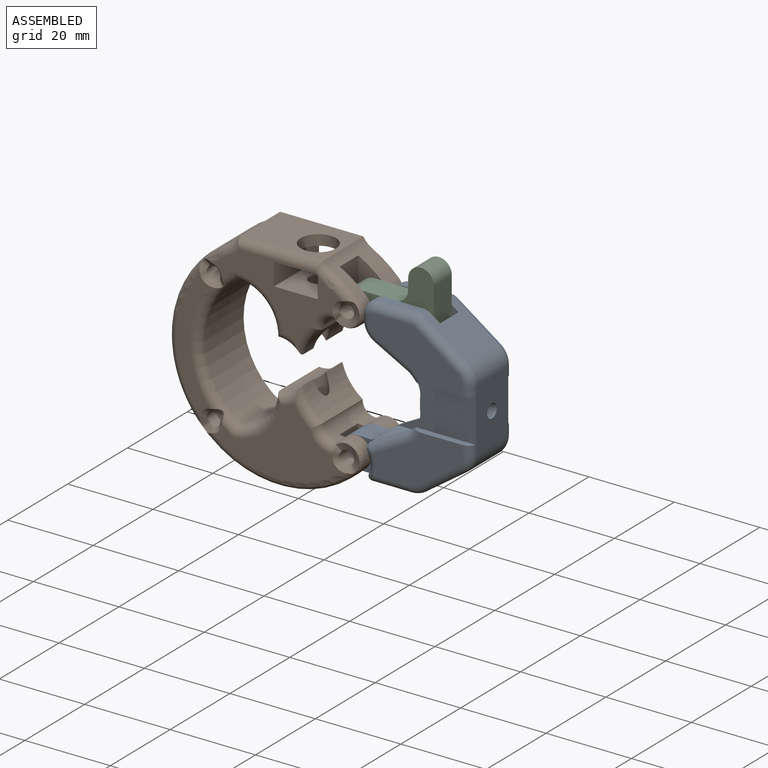
[diagram: assembled view]
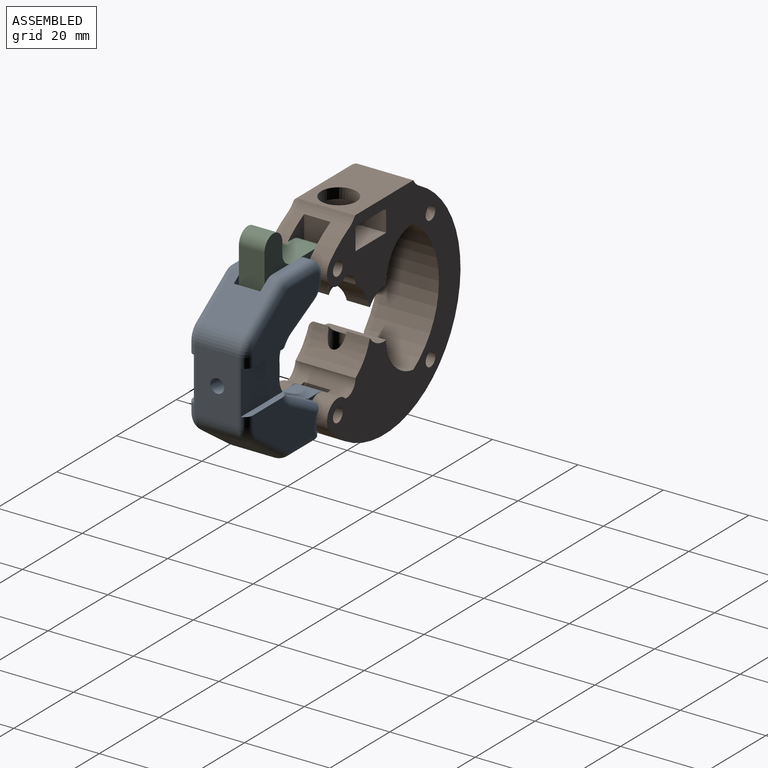
[diagram: assembled view, second angle]
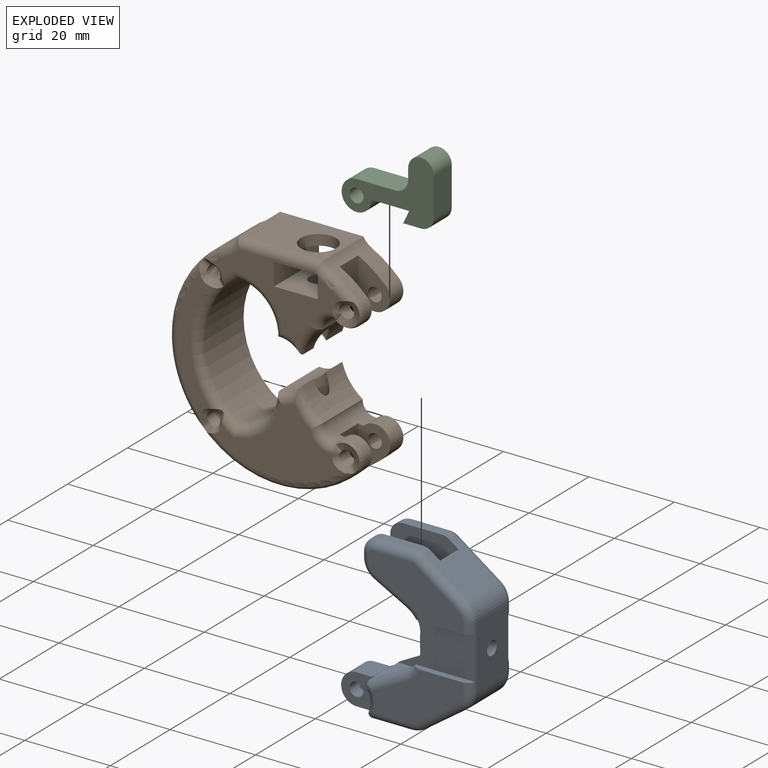
[diagram: exploded view]
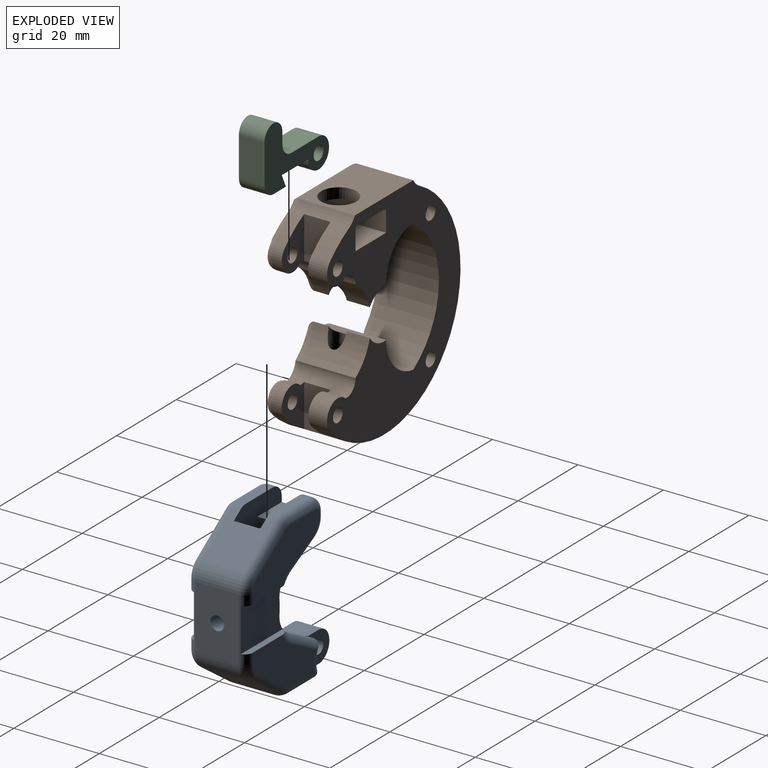
[diagram: exploded view, second angle]
ASSEMBLY  parts=3 mates=2
PART A: 109 faces, bbox 33.8x14.1x38.7 mm
  f0: plane 9.05x1.9mm, normal (0,0,1), area 17.2mm2, adj f66,f69,f70,f95
  f1: plane 1.9x1.21mm, normal (-1,0,0), area 2.3mm2, adj f14,f65,f67,f86
  f2: plane 10.09x10mm, normal (0.57,0,0.82), area 106.4mm2, adj f29,f61,f65,f66,f68,f69,f82,f97
  f3: plane 3x1.66mm, normal (-1,0,0), area 5mm2, adj f4,f6,f45,f59
  f4: cylinder r=10mm len=10mm, axis (0,-1,0), area 135.9mm2, adj f3,f5,f45,f46,f47,f54,f55,f56
  f5: plane 3x1.66mm, normal (-1,0,0), area 5mm2, adj f4,f6,f46,f56
  f6: cylinder r=10mm len=10mm, axis (0,-1,0), area 135.9mm2, adj f3,f5,f44,f45,f46,f56,f57,f58
  f7: cylinder r=1.62mm len=3.61mm, axis (1,0,0), area 36.9mm2, adj f10,f60
  f8: cylinder r=5mm len=4.42mm, axis (0,1,0), area 2.7mm2, adj f17,f18,f45,f71
  f9: plane 22x12.01mm, normal (0,1,0), area 158.7mm2, adj f52,f80,f81,f82,f83,f84,f85,f86
  f10: plane 14.8x10mm, normal (1,0,0), area 139.7mm2, adj f7,f28,f29,f80,f99
  f11: cylinder r=5mm len=4.42mm, axis (0,1,0), area 2.7mm2, adj f12,f32,f46,f90
  f12: plane 3.98x1mm, normal (-1,0,0), area 3.6mm2, adj f11,f33,f46,f49,f90,f108
  f13: plane 22x12.01mm, normal (0,-1,0), area 158.7mm2, adj f50,f90,f91,f92,f93,f94,f95,f96
  f14: cylinder r=5mm len=10mm, axis (0,1,0), area 39mm2, adj f1,f15,f31,f32,f44,f45,f46,f62
  f15: plane 7.68x4.07mm, normal (-0.47,0,-0.88), area 4.3mm2, adj f14,f16,f45,f88
  f16: cylinder r=5mm len=4.42mm, axis (0,1,0), area 2.7mm2, adj f15,f17,f45,f89
  f17: plane 3.98x1mm, normal (-1,0,0), area 3.6mm2, adj f8,f16,f45,f53,f71,f89
  f18: plane 9.26x4.9mm, normal (-0.47,0,0.88), area 5.2mm2, adj f8,f41,f45,f72
  f19: plane 6x0.73mm, normal (-0.47,0,0.88), area 4.9mm2, adj f24,f36,f39,f47
  f20: plane 21.08x12.01mm, normal (0,1,0), area 153.4mm2, adj f51,f71,f72,f74,f76,f77,f78,f79
  f21: cylinder r=3.61mm len=7.22mm, axis (0,1,0), area 67.4mm2, adj f22,f24,f36,f39
  f22: plane 6x3.72mm, normal (0,0,-1), area 22.3mm2, adj f21,f25,f36,f39
  f23: cylinder r=1.6mm len=6mm, axis (0,1,0), area 60.3mm2, adj f36,f39
  f24: plane 6x3.61mm, normal (0,0,1), area 21.7mm2, adj f19,f21,f36,f39
  f25: plane 11.42x10mm, normal (0,0,-1), area 106.5mm2, adj f22,f26,f36,f39,f40,f42,f76,f103
  f26: cylinder r=5mm len=10mm, axis (0,1,0), area 30.5mm2, adj f25,f27,f77,f102
  f27: plane 10x9.58mm, normal (0.57,0,-0.82), area 116.9mm2, adj f26,f28,f78,f101
  f28: cylinder r=5mm len=10mm, axis (0,1,0), area 48mm2, adj f10,f27,f79,f100
  f29: cylinder r=5mm len=10mm, axis (0,1,0), area 48mm2, adj f2,f10,f81,f98
  f30: plane 9.05x1.9mm, normal (0,0,1), area 17.2mm2, adj f65,f67,f68,f84
  f31: plane 1.9x1.21mm, normal (-1,0,0), area 2.3mm2, adj f14,f66,f70,f93
  f32: plane 7.68x4.07mm, normal (-0.47,0,-0.88), area 4.3mm2, adj f11,f14,f46,f91
  f33: cylinder r=5mm len=4.42mm, axis (0,1,0), area 2.7mm2, adj f12,f34,f46,f108
  f34: plane 9.26x4.9mm, normal (-0.47,0,0.88), area 5.2mm2, adj f33,f43,f46,f107
  f35: plane 21.08x12.01mm, normal (0,-1,0), area 153.4mm2, adj f48,f99,f100,f101,f102,f103,f105,f107
  f36: plane 9.16x7.61mm, normal (0,-1,0), area 47.2mm2, adj f19,f21,f22,f23,f24,f25,f37,f42
  f37: cylinder r=5mm len=4.93mm, axis (0,-1,0), area 10.3mm2, adj f36,f42,f43,f105
  f38: cylinder r=5mm len=4.93mm, axis (0,1,0), area 10.3mm2, adj f39,f40,f41,f74
  f39: plane 9.18x7.61mm, normal (0,1,0), area 47.2mm2, adj f19,f21,f22,f23,f24,f25,f38,f40
  f40: cylinder r=1mm len=2mm, axis (0,1,0), area 4mm2, adj f25,f38,f39,f75
  f41: cylinder r=1mm len=2mm, axis (0,1,0), area 2.9mm2, adj f18,f38,f39,f45,f47,f73
  f42: cylinder r=1mm len=2mm, axis (0,-1,0), area 4mm2, adj f25,f36,f37,f104
  f43: cylinder r=1mm len=2mm, axis (0,-1,0), area 2.9mm2, adj f34,f36,f37,f46,f47,f106
  f44: plane 9x5.06mm, normal (0,0,-1), area 45.5mm2, adj f6,f14,f45,f46
  f45: plane 23x15.56mm, normal (0,-1,0), area 117.6mm2, adj f3,f4,f6,f8,f14,f15,f16,f17
  f46: plane 23x15.56mm, normal (0,1,0), area 117.6mm2, adj f4,f5,f6,f11,f12,f14,f32,f33
  f47: plane 9x5.66mm, normal (0,0,1), area 50.6mm2, adj f4,f19,f36,f39,f41,f43,f45,f46
  f48: plane 14.06x1.62mm, normal (0,0,1), area 19.2mm2, adj f35,f49,f99,f108
  f49: plane 13.94x10.2mm, normal (0,-1,0), area 133.6mm2, adj f12,f48,f50,f90,f99,f108
  f50: plane 14.06x1.62mm, normal (0,0,-1), area 19.2mm2, adj f13,f49,f90,f99
  f51: plane 14.06x1.62mm, normal (0,0,1), area 19.2mm2, adj f20,f53,f71,f80
  f52: plane 14.06x1.62mm, normal (0,0,-1), area 19.2mm2, adj f9,f53,f80,f89
  f53: plane 13.94x10.2mm, normal (0,1,0), area 133.6mm2, adj f17,f51,f52,f71,f80,f89
  f54: plane 6.17x2.85mm, normal (0,0.5,0.87), area 19.8mm2, adj f4,f55,f56,f60
  f55: plane 6.17x2.85mm, normal (0,-0.5,0.87), area 19.8mm2, adj f4,f54,f59,f60
  f56: plane 6x3.28mm, normal (0,1,0), area 19.6mm2, adj f4,f5,f6,f54,f57,f60
  f57: plane 6.17x2.85mm, normal (0,0.5,-0.87), area 19.8mm2, adj f6,f56,f58,f60
  f58: plane 6.17x2.85mm, normal (0,-0.5,-0.87), area 19.8mm2, adj f6,f57,f59,f60
  f59: plane 6x3.28mm, normal (0,-1,0), area 19.6mm2, adj f3,f4,f6,f55,f58,f60
  f60: plane 6.55x5.67mm, normal (-1,0,0), area 19.6mm2, adj f7,f54,f55,f56,f57,f58,f59
  f61: plane 6.2x4.81mm, normal (-1,0,0), area 29.8mm2, adj f2,f64,f65,f66
  f62: plane 8.15x6.2mm, normal (0,0,1), area 50.5mm2, adj f14,f63,f65,f66
  f63: plane 6.2x2.7mm, normal (0.91,0,-0.42), area 18.5mm2, adj f62,f64,f65,f66
  f64: plane 9.11x6.2mm, normal (0,0,1), area 56.5mm2, adj f61,f63,f65,f66
  f65: plane 16x6.91mm, normal (0,-1,0), area 85.1mm2, adj f1,f2,f30,f61,f62,f63,f64,f67
  f66: plane 16x6.91mm, normal (0,1,0), area 85.1mm2, adj f0,f2,f31,f61,f62,f63,f64,f69
  f67: cylinder r=3mm len=3mm, axis (0,-1,0), area 9mm2, adj f1,f30,f65,f85
  f68: cylinder r=3mm len=1.9mm, axis (0,1,0), area 3.5mm2, adj f2,f30,f65,f83
  f69: cylinder r=3mm len=1.9mm, axis (0,1,0), area 3.5mm2, adj f0,f2,f66,f96
  f70: cylinder r=3mm len=3mm, axis (0,-1,0), area 9mm2, adj f0,f31,f66,f94
  f71: torus R=7mm, axis (0,-1,0), area 11.1mm2, adj f8,f17,f20,f51,f53,f72
  f72: cylinder r=2mm len=10.19mm, axis (-0.88,0,-0.47), area 31.3mm2, adj f18,f20,f71,f73
  f73: bspline ~2.8x2.14mm, area 2.4mm2, adj f41,f72,f74
  f74: torus R=7mm, axis (0,-1,0), area 15mm2, adj f20,f38,f73,f75
  f75: bspline ~2.41x2mm, area 3.1mm2, adj f40,f74,f76
  f76: cylinder r=2mm len=9.48mm, axis (1,0,0), area 27.6mm2, adj f20,f25,f75,f77
  f77: torus R=3mm, axis (0,-1,0), area 8.2mm2, adj f20,f26,f76,f78
  f78: cylinder r=2mm len=10.72mm, axis (0.82,0,0.57), area 36.7mm2, adj f20,f27,f77,f79
  f79: torus R=3mm, axis (0,-1,0), area 12.9mm2, adj f20,f28,f78,f80
  f80: cylinder r=2mm len=14.8mm, axis (0,0,1), area 19.6mm2, adj f9,f10,f20,f51,f52,f53,f79,f81
  f81: torus R=3mm, axis (0,-1,0), area 12.9mm2, adj f9,f29,f80,f82
  f82: cylinder r=2mm len=11.24mm, axis (-0.82,0,0.57), area 38.7mm2, adj f2,f9,f81,f83
  f83: torus R=1mm, axis (0,-1,0), area 4.4mm2, adj f9,f68,f82,f84
  f84: cylinder r=2mm len=9.05mm, axis (-1,0,0), area 28.4mm2, adj f9,f30,f83,f85
  f85: torus R=1mm, axis (0,-1,0), area 11.2mm2, adj f9,f67,f84,f86
  f86: cylinder r=2mm len=2mm, axis (0,0,-1), area 3.8mm2, adj f1,f9,f85,f87
  f87: torus R=3mm, axis (0,-1,0), area 14.5mm2, adj f9,f14,f86,f88
  f88: cylinder r=2mm len=8.62mm, axis (0.88,0,-0.47), area 27.3mm2, adj f9,f15,f87,f89
  f89: torus R=7mm, axis (0,-1,0), area 11.1mm2, adj f9,f16,f17,f52,f53,f88
  f90: torus R=7mm, axis (0,-1,0), area 11.1mm2, adj f11,f12,f13,f49,f50,f91
  f91: cylinder r=2mm len=8.62mm, axis (-0.88,0,0.47), area 27.3mm2, adj f13,f32,f90,f92
  f92: torus R=3mm, axis (0,-1,0), area 14.5mm2, adj f13,f14,f91,f93
  f93: cylinder r=2mm len=2mm, axis (0,0,1), area 3.8mm2, adj f13,f31,f92,f94
  f94: torus R=1mm, axis (0,-1,0), area 11.2mm2, adj f13,f70,f93,f95
  f95: cylinder r=2mm len=9.05mm, axis (1,0,0), area 28.4mm2, adj f0,f13,f94,f96
  f96: torus R=1mm, axis (0,-1,0), area 4.4mm2, adj f13,f69,f95,f97
  f97: cylinder r=2mm len=11.24mm, axis (0.82,0,-0.57), area 38.7mm2, adj f2,f13,f96,f98
  f98: torus R=3mm, axis (0,-1,0), area 12.9mm2, adj f13,f29,f97,f99
  f99: cylinder r=2mm len=14.8mm, axis (0,0,-1), area 19.6mm2, adj f10,f13,f35,f48,f49,f50,f98,f100
  f100: torus R=3mm, axis (0,-1,0), area 12.9mm2, adj f28,f35,f99,f101
  f101: cylinder r=2mm len=10.72mm, axis (-0.82,0,-0.57), area 36.7mm2, adj f27,f35,f100,f102
  f102: torus R=3mm, axis (0,-1,0), area 8.2mm2, adj f26,f35,f101,f103
  f103: cylinder r=2mm len=9.48mm, axis (-1,0,0), area 27.6mm2, adj f25,f35,f102,f104
  f104: bspline ~3x2.62mm, area 3.2mm2, adj f42,f103,f105
  f105: torus R=7mm, axis (0,-1,0), area 15mm2, adj f35,f37,f104,f106
  f106: bspline ~2.8x2.54mm, area 2.4mm2, adj f43,f105,f107
  f107: cylinder r=2mm len=10.19mm, axis (0.88,0,0.47), area 31.3mm2, adj f34,f35,f106,f108
  f108: torus R=7mm, axis (0,-1,0), area 11.1mm2, adj f12,f33,f35,f48,f49,f107
PART B: 76 faces, bbox 47.2x15x52.2 mm
  f0: cylinder r=3.61mm len=6.16mm, axis (0,1,0), area 49.9mm2, adj f1,f14,f30,f68
  f1: cylinder r=25.52mm len=6.28mm, axis (0,1,0), area 34.4mm2, adj f0,f30,f31,f68
  f2: cylinder r=3.61mm len=6.16mm, axis (0,1,0), area 49.9mm2, adj f10,f19,f30,f73
  f3: cylinder r=1.61mm len=4.4mm, axis (0,1,0), area 44.5mm2, adj f30,f68
  f4: cylinder r=1.61mm len=4.4mm, axis (0,1,0), area 44.5mm2, adj f30,f73
  f5: plane 30.33x15.91mm, normal (0,-1,0), area 176.6mm2, adj f7,f21,f22,f23,f37,f39,f41,f43
  f6: plane 30.33x16.85mm, normal (0,-1,0), area 240mm2, adj f36,f37,f38,f40,f42,f46,f54,f65
  f7: plane 15x9.2mm, normal (0,0,-1), area 84.5mm2, adj f5,f30,f35,f74,f75
  f8: cylinder r=5.8mm len=13mm, axis (0,1,0), area 70.1mm2, adj f9,f13,f30,f33,f41
  f9: cylinder r=12mm len=13mm, axis (0,1,0), area 94.5mm2, adj f8,f14,f30,f33,f43
  f10: cylinder r=25.52mm len=48.17mm, axis (0,1,0), area 1079.9mm2, adj f2,f18,f30,f32,f34,f46,f71,f72
  f11: cylinder r=12mm len=13mm, axis (0,1,0), area 94.5mm2, adj f12,f19,f30,f34,f40
  f12: cylinder r=5.8mm len=13mm, axis (0,1,0), area 74.8mm2, adj f11,f20,f30,f34,f38
  f13: cylinder r=9.12mm len=13mm, axis (0,1,0), area 194.2mm2, adj f8,f28,f30,f39
  f14: cylinder r=3.06mm len=13mm, axis (0,1,0), area 58.2mm2, adj f0,f9,f15,f30,f45,f68,f69,f70
  f15: cylinder r=3.61mm len=6.16mm, axis (0,1,0), area 27.2mm2, adj f14,f16,f47,f69
  f16: cylinder r=25.52mm len=6.28mm, axis (0,1,0), area 18.7mm2, adj f15,f31,f49,f69
  f17: plane 19.48x13mm, normal (0,0,1), area 199.8mm2, adj f30,f31,f32,f35,f50
  f18: cylinder r=3.61mm len=6.16mm, axis (0,1,0), area 27.2mm2, adj f10,f19,f44,f72
  f19: cylinder r=3.06mm len=13mm, axis (0,1,0), area 58.2mm2, adj f2,f11,f18,f30,f42,f71,f72,f73
  f20: cylinder r=10.25mm len=13mm, axis (0,1,0), area 188.6mm2, adj f12,f28,f30,f36
  f21: plane 15x10.2mm, normal (0,0,1), area 138.8mm2, adj f5,f22,f23,f30,f33
  f22: plane 15x4.7mm, normal (1,0,0), area 70.5mm2, adj f5,f21,f30,f75
  f23: plane 15x4.7mm, normal (-1,0,0), area 70.5mm2, adj f5,f21,f30,f74
  f24: cylinder r=1.61mm len=14.1mm, axis (0,1,0), area 142.6mm2, adj f30,f60,f61,f62,f63
  f25: cylinder r=1.61mm len=3.5mm, axis (0,1,0), area 32.4mm2, adj f56,f57,f58,f59,f69
  f26: cylinder r=1.61mm len=3.5mm, axis (0,1,0), area 32.4mm2, adj f52,f53,f54,f55,f72
  f27: cylinder r=1.61mm len=14.1mm, axis (0,1,0), area 142.6mm2, adj f30,f64,f65,f66,f67
  f28: cylinder r=18.3mm len=30.99mm, axis (0,1,0), area 480.4mm2, adj f13,f20,f30,f37
  f29: plane 30.33x7.92mm, normal (0,-1,0), area 95.9mm2, adj f37,f46,f62,f66
  f30: plane 50.11x44.63mm, normal (0,1,0), area 1013.3mm2, adj f0,f1,f2,f3,f4,f7,f8,f9
  f31: cylinder r=5mm len=13mm, axis (0,-1,0), area 35.9mm2, adj f1,f16,f17,f30,f51,f68,f69,f70
  f32: cylinder r=5mm len=13mm, axis (0,-1,0), area 37mm2, adj f10,f17,f30,f48
  f33: cylinder r=2.12mm len=13.67mm, axis (0,0,-1), area 156.3mm2, adj f8,f9,f21
  f34: cylinder r=2.12mm len=22.15mm, axis (0,0,-1), area 272.5mm2, adj f10,f11,f12
  f35: cylinder r=4.12mm len=8.25mm, axis (0,0,1), area 63.4mm2, adj f7,f17
  f36: torus R=12.25mm, axis (0,-1,0), area 47.1mm2, adj f6,f20,f37,f38
  f37: torus R=20.3mm, axis (0,-1,0), area 113.4mm2, adj f5,f6,f28,f29,f36,f39,f60,f67
  f38: torus R=7.8mm, axis (0,-1,0), area 14.8mm2, adj f6,f12,f36,f40
  f39: torus R=11.12mm, axis (0,-1,0), area 48.5mm2, adj f5,f13,f37,f41
  f40: torus R=14mm, axis (0,-1,0), area 21.9mm2, adj f6,f11,f38,f42
  f41: torus R=7.8mm, axis (0,-1,0), area 14.6mm2, adj f5,f8,f39,f43
  f42: torus R=5.06mm, axis (0,-1,0), area 18.9mm2, adj f6,f19,f40,f44,f53,f55
  f43: torus R=14mm, axis (0,-1,0), area 21.9mm2, adj f5,f9,f41,f45
  f44: torus R=1.61mm, axis (0,-1,0), area 13.5mm2, adj f18,f42,f46,f53
  f45: torus R=5.06mm, axis (0,-1,0), area 18.9mm2, adj f5,f14,f43,f47,f57,f59
  f46: torus R=23.52mm, axis (0,-1,0), area 256.3mm2, adj f5,f6,f10,f29,f44,f48,f52,f63
  f47: torus R=1.61mm, axis (0,-1,0), area 13.5mm2, adj f15,f45,f49,f59
  f48: torus R=7mm, axis (0,-1,0), area 8.6mm2, adj f5,f32,f46,f50
  f49: torus R=23.52mm, axis (0,-1,0), area 21.9mm2, adj f5,f16,f47,f51,f58
  f50: cylinder r=2mm len=19.48mm, axis (1,0,0), area 58mm2, adj f5,f17,f48,f51
  f51: torus R=7mm, axis (0,-1,0), area 8.5mm2, adj f5,f31,f49,f50,f74
  f52: bspline ~2.63x1.81mm, area 3.5mm2, adj f26,f46,f53,f54
  f53: cone r=1.61mm half-angle=72.5deg, axis (0,-1,0), area 13.2mm2, adj f26,f42,f44,f52,f55
  f54: cone r=1.61mm half-angle=45deg, axis (0,-1,0), area 4.4mm2, adj f6,f26,f52,f55
  f55: bspline ~1.95x1.41mm, area 2.1mm2, adj f26,f42,f53,f54
  f56: cone r=1.61mm half-angle=45deg, axis (0,-1,0), area 4.4mm2, adj f5,f25,f57,f58
  f57: bspline ~1.92x1.39mm, area 2.1mm2, adj f25,f45,f56,f59
  f58: bspline ~2.63x1.82mm, area 3.5mm2, adj f25,f49,f56,f59
  f59: cone r=1.61mm half-angle=72.5deg, axis (0,-1,0), area 13.2mm2, adj f25,f45,f47,f57,f58
  f60: bspline ~2.85x2.85mm, area 6.3mm2, adj f24,f37,f61,f62
  f61: cone r=1.61mm half-angle=45deg, axis (0,-1,0), area 3.7mm2, adj f5,f24,f60,f63
  f62: cone r=1.61mm half-angle=45deg, axis (0,-1,0), area 3.7mm2, adj f24,f29,f60,f63
  f63: bspline ~3.15x3.15mm, area 6.9mm2, adj f24,f46,f61,f62
  f64: bspline ~3.15x3.15mm, area 6.9mm2, adj f27,f46,f65,f66
  f65: cone r=1.61mm half-angle=45deg, axis (0,-1,0), area 3.7mm2, adj f6,f27,f64,f67
  f66: cone r=1.61mm half-angle=45deg, axis (0,-1,0), area 3.7mm2, adj f27,f29,f64,f67
  f67: bspline ~2.85x2.85mm, area 6.3mm2, adj f27,f37,f65,f66
  f68: plane 10.85x7.5mm, normal (0,-1,0), area 49mm2, adj f0,f1,f3,f14,f31,f70
  f69: plane 10.85x7.5mm, normal (0,1,0), area 49mm2, adj f14,f15,f16,f25,f31,f70
  f70: plane 9.95x6.2mm, normal (1,0,0), area 61.7mm2, adj f14,f31,f68,f69
  f71: plane 9.94x6.2mm, normal (1,0,0), area 61.7mm2, adj f10,f19,f72,f73
  f72: plane 10.85x7.5mm, normal (0,1,0), area 49mm2, adj f10,f18,f19,f26,f71
  f73: plane 10.85x7.5mm, normal (0,-1,0), area 49mm2, adj f2,f4,f10,f19,f71
  f74: cylinder r=0.5mm len=15mm, axis (0,-1,0), area 11.8mm2, adj f5,f7,f23,f30,f51
  f75: cylinder r=0.5mm len=15mm, axis (0,1,0), area 11.8mm2, adj f5,f7,f22,f30
PART C: 13 faces, bbox 21.6x6x15.5 mm
  f0: plane 6x2.56mm, normal (-1,0,0), area 15.3mm2, adj f8,f9,f10,f12
  f1: plane 9.08x6mm, normal (0,0,1), area 54.5mm2, adj f2,f8,f9,f10
  f2: cylinder r=3.5mm len=7mm, axis (0,1,0), area 99mm2, adj f1,f3,f8,f9
  f3: plane 8.8x6mm, normal (0,0,-1), area 52.8mm2, adj f2,f4,f8,f9
  f4: plane 6x2.96mm, normal (-0.91,0,0.42), area 19.6mm2, adj f3,f5,f8,f9
  f5: plane 6x4.17mm, normal (0,0,-1), area 25mm2, adj f4,f8,f9,f11
  f6: plane 9x6mm, normal (1,0,0), area 54mm2, adj f8,f9,f11,f12
  f7: cylinder r=1.62mm len=6mm, axis (0,1,0), area 61.3mm2, adj f8,f9
  f8: plane 21.59x15.54mm, normal (0,-1,0), area 150.3mm2, adj f0,f1,f2,f3,f4,f5,f6,f7
  f9: plane 21.59x15.54mm, normal (0,1,0), area 150.3mm2, adj f0,f1,f2,f3,f4,f5,f6,f7
  f10: cylinder r=3mm len=6mm, axis (0,-1,0), area 28.3mm2, adj f0,f1,f8,f9
  f11: cylinder r=3mm len=6mm, axis (0,1,0), area 28.3mm2, adj f5,f6,f8,f9
  f12: cylinder r=3mm len=6mm, axis (0,1,0), area 56.5mm2, adj f0,f6,f8,f9
PLACE A t=(-10.59,-3.23,6.66)mm
PLACE B t=(-10.59,-2.73,6.66)mm
PLACE C t=(4.91,-7.23,22.16)mm
MATE revolute A.f21 <-> B.f2  axis (0,-1,0) through (4.91,-13.23,-8.83)mm
MATE revolute C.f2 <-> B.f0  axis (0,-1,0) through (4.91,-13.23,22.16)mm
